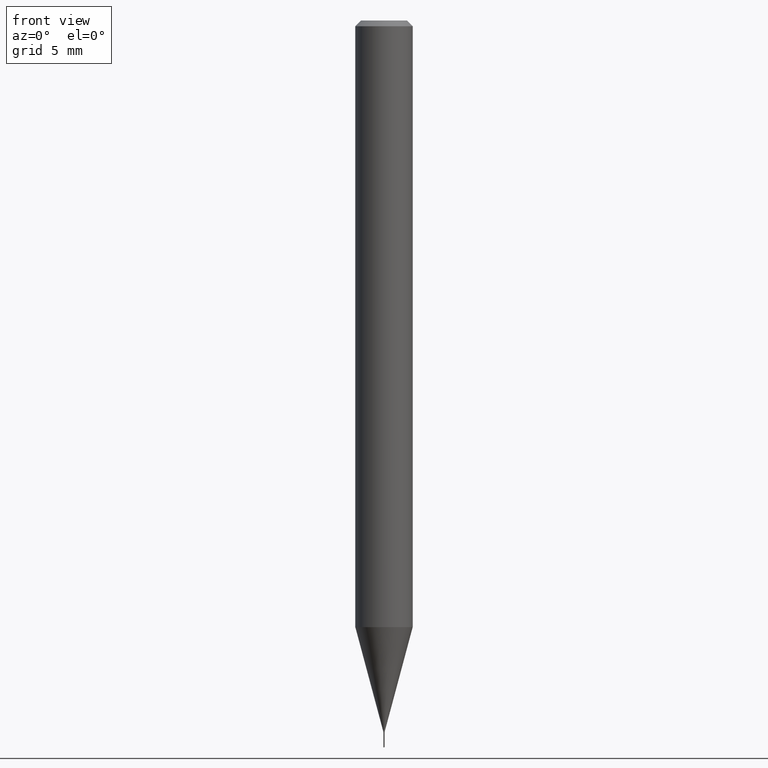
[diagram: clean part render]
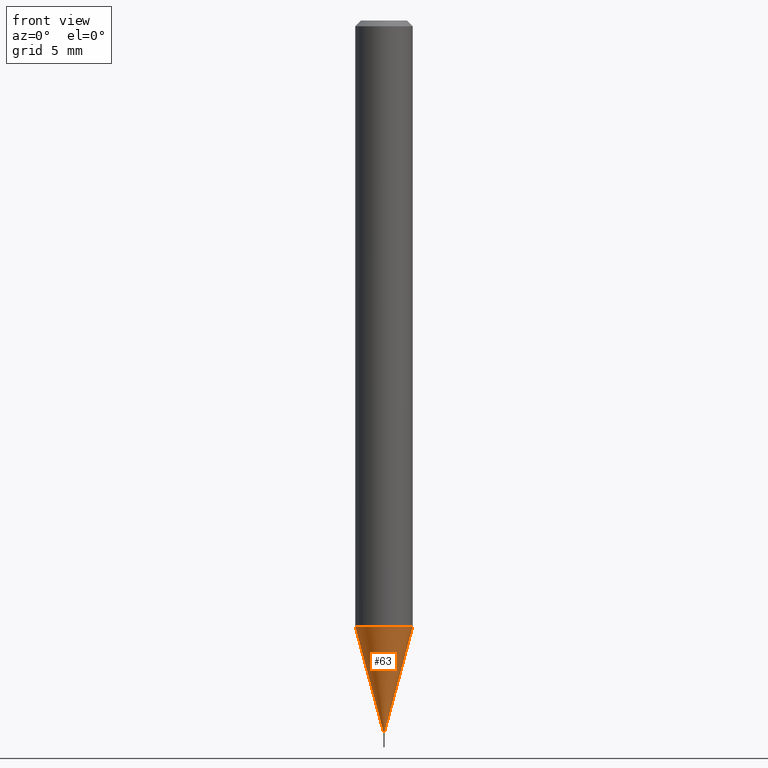
[diagram: same view with one face highlighted and labeled with its STEP entity id]
A machine part, front view. The second image highlights one B-rep face of the part: STEP entity #63.
In plain terms, the highlighted conical surface has half-angle 15 deg.
Its self-contained STEP definition (entity closure, byte-faithful):
#44 = CARTESIAN_POINT ( 'NONE',  ( 0.001199999999999999895, -5.120606531547357794E-15, -1.464199999999999946 ) ) ;
#47 = LINE ( 'NONE', #315, #219 ) ;
#52 = EDGE_CURVE ( 'NONE', #118, #335, #434, .T. ) ;
#53 = CARTESIAN_POINT ( 'NONE',  ( 0.001199999999999999895, -5.120606531547357794E-15, -1.464199999999999946 ) ) ;
#54 = DIRECTION ( 'NONE',  ( 1.000000000000000000, -6.982962677686657197E-15, 0.000000000000000000 ) ) ;
#60 = DIRECTION ( 'NONE',  ( -2.445468806185136597E-29, 3.491481338843145583E-15, 1.000000000000000000 ) ) ;
#63 = ADVANCED_FACE ( 'NONE', ( #395 ), #383, .T. ) ;
#65 = AXIS2_PLACEMENT_3D ( 'NONE', #330, #60, #54 ) ;
#76 = EDGE_LOOP ( 'NONE', ( #127, #258, #405, #102 ) ) ;
#98 = VERTEX_POINT ( 'NONE', #169 ) ;
#102 = ORIENTED_EDGE ( 'NONE', *, *, #52, .F. ) ;
#118 = VERTEX_POINT ( 'NONE', #468 ) ;
#126 = LINE ( 'NONE', #44, #440 ) ;
#127 = ORIENTED_EDGE ( 'NONE', *, *, #269, .F. ) ;
#131 = EDGE_CURVE ( 'NONE', #98, #445, #378, .T. ) ;
#157 = DIRECTION ( 'NONE',  ( 0.2588190451025281780, 1.565188264969567536E-15, 0.9659258262890662028 ) ) ;
#162 = AXIS2_PLACEMENT_3D ( 'NONE', #406, #210, #300 ) ;
#169 = CARTESIAN_POINT ( 'NONE',  ( -0.001199999999999999895, -5.103525889438070980E-15, -1.464199999999999946 ) ) ;
#173 = CARTESIAN_POINT ( 'NONE',  ( 3.052680815776794134E-29, -4.358419160682700425E-15, -1.248300860782146415 ) ) ;
#210 = DIRECTION ( 'NONE',  ( -2.445468806185136597E-29, 3.491481338843145583E-15, 1.000000000000000000 ) ) ;
#219 = VECTOR ( 'NONE', #357, 39.37007874015748854 ) ;
#251 = AXIS2_PLACEMENT_3D ( 'NONE', #173, #326, #433 ) ;
#258 = ORIENTED_EDGE ( 'NONE', *, *, #131, .T. ) ;
#269 = EDGE_CURVE ( 'NONE', #98, #118, #47, .T. ) ;
#276 = CARTESIAN_POINT ( 'NONE',  ( 0.05905000000000015098, -4.770763106800076134E-15, -1.248300860782146415 ) ) ;
#300 = DIRECTION ( 'NONE',  ( 1.000000000000000000, -6.982962677686657197E-15, 0.000000000000000000 ) ) ;
#315 = CARTESIAN_POINT ( 'NONE',  ( -0.001199999999999999895, -5.103700463505012736E-15, -1.464199999999999946 ) ) ;
#326 = DIRECTION ( 'NONE',  ( -2.445468806185136597E-29, 3.491481338843145583E-15, 1.000000000000000000 ) ) ;
#330 = CARTESIAN_POINT ( 'NONE',  ( 3.580655426016277013E-29, -5.112226976334133788E-15, -1.464199999999999946 ) ) ;
#335 = VERTEX_POINT ( 'NONE', #276 ) ;
#350 = EDGE_CURVE ( 'NONE', #445, #335, #126, .T. ) ;
#357 = DIRECTION ( 'NONE',  ( -0.2588190451025281780, 5.211531920934592063E-15, 0.9659258262890662028 ) ) ;
#378 = CIRCLE ( 'NONE', #162, 0.001199999999999999895 ) ;
#383 = CONICAL_SURFACE ( 'NONE', #65, 0.001199999999999999895, 0.2617993877991571794 ) ;
#395 = FACE_OUTER_BOUND ( 'NONE', #76, .T. ) ;
#405 = ORIENTED_EDGE ( 'NONE', *, *, #350, .T. ) ;
#406 = CARTESIAN_POINT ( 'NONE',  ( 3.580655426016277013E-29, -5.112226976334133788E-15, -1.464199999999999946 ) ) ;
#433 = DIRECTION ( 'NONE',  ( 1.000000000000000000, -6.982962677686262766E-15, 0.000000000000000000 ) ) ;
#434 = CIRCLE ( 'NONE', #251, 0.05905000000000015098 ) ;
#440 = VECTOR ( 'NONE', #157, 39.37007874015748854 ) ;
#445 = VERTEX_POINT ( 'NONE', #53 ) ;
#468 = CARTESIAN_POINT ( 'NONE',  ( -0.05905000000000015098, -3.938843675216360143E-15, -1.248300860782146415 ) ) ;